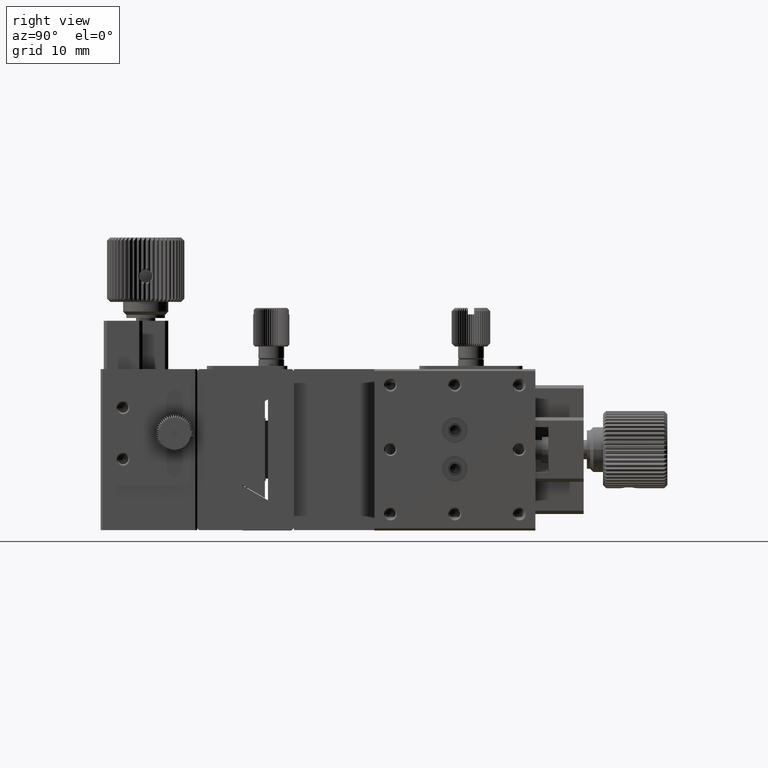
[diagram: clean part render]
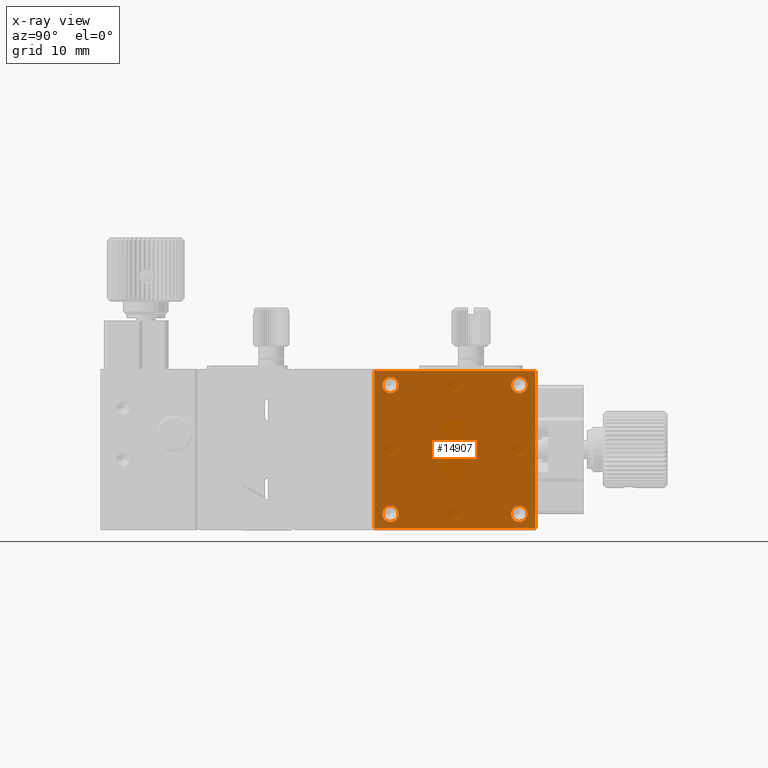
[diagram: x-ray — body ghosted, one internal face saturated and labeled with its STEP entity id]
A machine part, right view, then the same camera in x-ray: the body is ghosted and one INTERNAL B-rep face — a face not visible from any outside direction — is saturated and labeled: STEP entity #14907.
In plain terms, the highlighted planar face has unit normal (1, 0, -0).
Its self-contained STEP definition (entity closure, byte-faithful):
#8 = ORIENTED_EDGE ( 'NONE', *, *, #6984, .F. ) ;
#72 = ORIENTED_EDGE ( 'NONE', *, *, #11652, .F. ) ;
#415 = VERTEX_POINT ( 'NONE', #9607 ) ;
#941 = DIRECTION ( 'NONE',  ( 0.000000000000000000, 0.000000000000000000, -1.000000000000000000 ) ) ;
#1373 = CIRCLE ( 'NONE', #31937, 1.250000000000000222 ) ;
#1945 = EDGE_CURVE ( 'NONE', #415, #44216, #40192, .T. ) ;
#3168 = ORIENTED_EDGE ( 'NONE', *, *, #52487, .F. ) ;
#3363 = ORIENTED_EDGE ( 'NONE', *, *, #1945, .F. ) ;
#3812 = CARTESIAN_POINT ( 'NONE',  ( -3.043247295881171429E-15, 12.49999999999999645, -24.69999999999999574 ) ) ;
#5152 = CARTESIAN_POINT ( 'NONE',  ( -1.544361026090258946E-15, 12.49999999999999645, -0.3000000000000079270 ) ) ;
#6032 = DIRECTION ( 'NONE',  ( -1.000000000000000000, 0.000000000000000000, 0.000000000000000000 ) ) ;
#6189 = EDGE_LOOP ( 'NONE', ( #3168 ) ) ;
#6984 = EDGE_CURVE ( 'NONE', #13174, #46748, #12284, .T. ) ;
#7097 = DIRECTION ( 'NONE',  ( 0.000000000000000000, -1.000000000000000000, 0.000000000000000000 ) ) ;
#9607 = CARTESIAN_POINT ( 'NONE',  ( -1.571466080402396557E-15, 37.50000000000000711, -0.3000000000000079825 ) ) ;
#9988 = DIRECTION ( 'NONE',  ( -1.000000000000000000, 0.000000000000000000, 0.000000000000000000 ) ) ;
#10879 = DIRECTION ( 'NONE',  ( 0.000000000000000000, 0.000000000000000000, -1.000000000000000000 ) ) ;
#11652 = EDGE_CURVE ( 'NONE', #34610, #34610, #1373, .T. ) ;
#11675 = FACE_BOUND ( 'NONE', #15920, .T. ) ;
#12284 = LINE ( 'NONE', #3812, #32273 ) ;
#12765 = FACE_BOUND ( 'NONE', #6189, .T. ) ;
#13174 = VERTEX_POINT ( 'NONE', #21631 ) ;
#14179 = AXIS2_PLACEMENT_3D ( 'NONE', #26621, #9988, #941 ) ;
#14427 = DIRECTION ( 'NONE',  ( -1.000000000000000000, 0.000000000000000000, 0.000000000000000000 ) ) ;
#14490 = CARTESIAN_POINT ( 'NONE',  ( -1.530808498934190141E-15, 12.49999999999999645, -0.3000000000000079270 ) ) ;
#14646 = EDGE_LOOP ( 'NONE', ( #25311 ) ) ;
#14907 = ADVANCED_FACE ( 'NONE', ( #41206, #11675, #45834, #12765, #49411 ), #32725, .F. ) ;
#15893 = DIRECTION ( 'NONE',  ( 6.198519659618779915E-17, 0.000000000000000000, 1.000000000000000000 ) ) ;
#15920 = EDGE_LOOP ( 'NONE', ( #72 ) ) ;
#16985 = CARTESIAN_POINT ( 'NONE',  ( -1.530808498934190141E-15, 15.00000000000000000, -22.49999999999999645 ) ) ;
#18788 = LINE ( 'NONE', #36016, #19501 ) ;
#19501 = VECTOR ( 'NONE', #48587, 1000.000000000000000 ) ;
#19665 = DIRECTION ( 'NONE',  ( -0.000000000000000000, 1.000000000000000000, -0.000000000000000000 ) ) ;
#19958 = VECTOR ( 'NONE', #7097, 1000.000000000000000 ) ;
#21631 = CARTESIAN_POINT ( 'NONE',  ( -2.476082747026046544E-15, 12.49999999999999645, -24.69999999999999574 ) ) ;
#22265 = VERTEX_POINT ( 'NONE', #51300 ) ;
#25311 = ORIENTED_EDGE ( 'NONE', *, *, #51853, .F. ) ;
#26621 = CARTESIAN_POINT ( 'NONE',  ( -1.530808498934190141E-15, 34.99999999999999289, -22.49999999999999645 ) ) ;
#26902 = VERTEX_POINT ( 'NONE', #38710 ) ;
#27059 = ORIENTED_EDGE ( 'NONE', *, *, #48496, .F. ) ;
#28879 = CARTESIAN_POINT ( 'NONE',  ( -1.530808498934190141E-15, 12.49999999999999645, -0.3000000000000079270 ) ) ;
#30904 = DIRECTION ( 'NONE',  ( 0.000000000000000000, 0.000000000000000000, -1.000000000000000000 ) ) ;
#31937 = AXIS2_PLACEMENT_3D ( 'NONE', #46236, #6032, #30904 ) ;
#32273 = VECTOR ( 'NONE', #19665, 1000.000000000000000 ) ;
#32725 = PLANE ( 'NONE',  #41458 ) ;
#32993 = DIRECTION ( 'NONE',  ( 1.000000000000000000, 0.000000000000000000, -6.198519659618779915E-17 ) ) ;
#34453 = AXIS2_PLACEMENT_3D ( 'NONE', #16985, #45423, #37269 ) ;
#34610 = VERTEX_POINT ( 'NONE', #51559 ) ;
#36016 = CARTESIAN_POINT ( 'NONE',  ( -1.530808498934190141E-15, 12.49999999999999645, -0.3000000000000079270 ) ) ;
#36134 = CIRCLE ( 'NONE', #47459, 1.250000000000000222 ) ;
#37269 = DIRECTION ( 'NONE',  ( 0.000000000000000000, 0.000000000000000000, -1.000000000000000000 ) ) ;
#37275 = CARTESIAN_POINT ( 'NONE',  ( -1.530808498934190141E-15, 37.50000000000000000, -0.3000000000000079270 ) ) ;
#38710 = CARTESIAN_POINT ( 'NONE',  ( -1.530808498934190141E-15, 34.99999999999999289, -23.74999999999999645 ) ) ;
#40192 = LINE ( 'NONE', #14490, #19958 ) ;
#40843 = EDGE_LOOP ( 'NONE', ( #8, #53528, #3363, #27059 ) ) ;
#41206 = FACE_OUTER_BOUND ( 'NONE', #40843, .T. ) ;
#41448 = CIRCLE ( 'NONE', #34453, 1.250000000000001110 ) ;
#41458 = AXIS2_PLACEMENT_3D ( 'NONE', #28879, #32993, #45555 ) ;
#42132 = CIRCLE ( 'NONE', #14179, 1.250000000000001110 ) ;
#43570 = EDGE_LOOP ( 'NONE', ( #43639 ) ) ;
#43639 = ORIENTED_EDGE ( 'NONE', *, *, #50651, .F. ) ;
#43878 = VERTEX_POINT ( 'NONE', #46898 ) ;
#43945 = CARTESIAN_POINT ( 'NONE',  ( -1.530808498934190141E-15, 15.00000000000000000, -2.499999999999996891 ) ) ;
#44216 = VERTEX_POINT ( 'NONE', #5152 ) ;
#45423 = DIRECTION ( 'NONE',  ( -1.000000000000000000, 0.000000000000000000, 0.000000000000000000 ) ) ;
#45555 = DIRECTION ( 'NONE',  ( 6.198519659618779915E-17, 0.000000000000000000, 1.000000000000000000 ) ) ;
#45834 = FACE_BOUND ( 'NONE', #43570, .T. ) ;
#46236 = CARTESIAN_POINT ( 'NONE',  ( -1.530808498934190141E-15, 34.99999999999999289, -2.499999999999996891 ) ) ;
#46748 = VERTEX_POINT ( 'NONE', #47152 ) ;
#46898 = CARTESIAN_POINT ( 'NONE',  ( -1.530808498934190141E-15, 15.00000000000000000, -3.749999999999997335 ) ) ;
#47152 = CARTESIAN_POINT ( 'NONE',  ( -2.759665021453608592E-15, 37.50000000000000711, -24.69999999999999574 ) ) ;
#47459 = AXIS2_PLACEMENT_3D ( 'NONE', #43945, #14427, #10879 ) ;
#48496 = EDGE_CURVE ( 'NONE', #46748, #415, #53969, .T. ) ;
#48587 = DIRECTION ( 'NONE',  ( -6.198519659618779915E-17, -0.000000000000000000, -1.000000000000000000 ) ) ;
#49411 = FACE_BOUND ( 'NONE', #14646, .T. ) ;
#49914 = VECTOR ( 'NONE', #15893, 1000.000000000000000 ) ;
#50651 = EDGE_CURVE ( 'NONE', #26902, #26902, #42132, .T. ) ;
#51300 = CARTESIAN_POINT ( 'NONE',  ( -1.530808498934190141E-15, 15.00000000000000000, -23.74999999999999645 ) ) ;
#51559 = CARTESIAN_POINT ( 'NONE',  ( -1.530808498934190141E-15, 34.99999999999999289, -3.749999999999997335 ) ) ;
#51853 = EDGE_CURVE ( 'NONE', #43878, #43878, #36134, .T. ) ;
#51877 = EDGE_CURVE ( 'NONE', #44216, #13174, #18788, .T. ) ;
#52487 = EDGE_CURVE ( 'NONE', #22265, #22265, #41448, .T. ) ;
#53528 = ORIENTED_EDGE ( 'NONE', *, *, #51877, .F. ) ;
#53969 = LINE ( 'NONE', #37275, #49914 ) ;